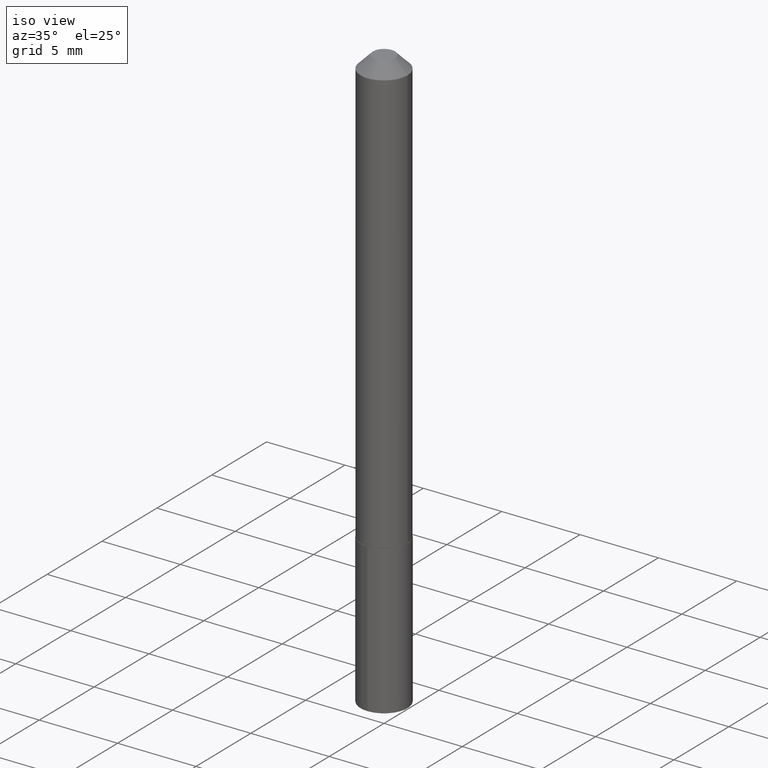
[diagram: clean part render]
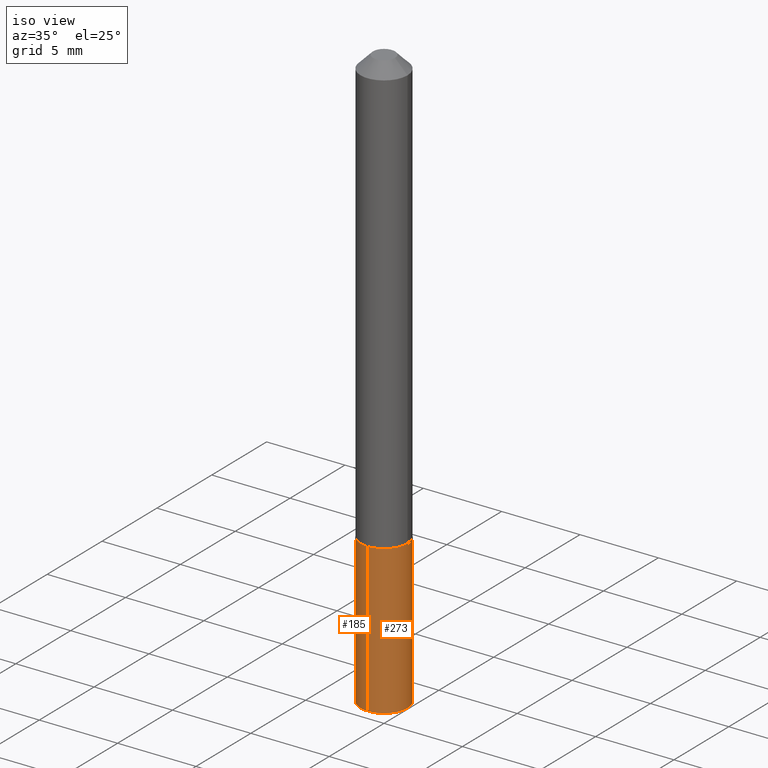
[diagram: same view with one multi-face feature highlighted, each face labeled with its STEP entity id]
A machine part, iso view. The highlighted faces form ONE feature: a constant-radius fillet chain: 2 tangent blend faces with common blend radius 1.4999 mm. The faces share edges in the B-rep.
Their STEP definitions:
[1] entity #273 (Cylinder):
#4 = FACE_OUTER_BOUND ( 'NONE', #236, .T. ) ;
#15 = EDGE_CURVE ( 'NONE', #282, #309, #233, .T. ) ;
#22 = CARTESIAN_POINT ( 'NONE',  ( 4.195754854663658212E-16, 0.05904999999999617499, -1.094500000000000250 ) ) ;
#36 = DIRECTION ( 'NONE',  ( -2.445087300798307446E-29, 3.492027676271023430E-15, 1.000000000000000000 ) ) ;
#44 = LINE ( 'NONE', #110, #94 ) ;
#51 = VERTEX_POINT ( 'NONE', #286 ) ;
#66 = VECTOR ( 'NONE', #357, 39.37007874015748143 ) ;
#85 = VERTEX_POINT ( 'NONE', #140 ) ;
#94 = VECTOR ( 'NONE', #275, 39.37007874015748143 ) ;
#95 = EDGE_CURVE ( 'NONE', #51, #309, #237, .T. ) ;
#110 = CARTESIAN_POINT ( 'NONE',  ( -4.123439461173472114E-16, -0.05905000000000382165, -1.094499999999999584 ) ) ;
#115 = DIRECTION ( 'NONE',  ( -2.445087300798307446E-29, 3.492027676271023430E-15, 1.000000000000000000 ) ) ;
#122 = CARTESIAN_POINT ( 'NONE',  ( 2.676565608369631794E-29, -3.821426325363822773E-15, -1.094499999999999806 ) ) ;
#123 = AXIS2_PLACEMENT_3D ( 'NONE', #206, #115, #283 ) ;
#127 = CARTESIAN_POINT ( 'NONE',  ( -4.123439461173472114E-16, -0.05905000000000382165, -1.094499999999999584 ) ) ;
#140 = CARTESIAN_POINT ( 'NONE',  ( -4.123439461173381888E-16, -0.05905000000000514698, -1.468564532785947341 ) ) ;
#152 = AXIS2_PLACEMENT_3D ( 'NONE', #122, #240, #364 ) ;
#154 = DIRECTION ( 'NONE',  ( -6.982962677686265922E-15, -1.000000000000000000, 4.626330217890369336E-15 ) ) ;
#155 = EDGE_CURVE ( 'NONE', #85, #282, #44, .T. ) ;
#167 = ORIENTED_EDGE ( 'NONE', *, *, #95, .T. ) ;
#186 = CARTESIAN_POINT ( 'NONE',  ( 3.591186047163604119E-29, -5.127670026563741569E-15, -1.468564532785947563 ) ) ;
#190 = CARTESIAN_POINT ( 'NONE',  ( 4.195754854663749917E-16, 0.05904999999999616805, -1.094500000000000250 ) ) ;
#203 = EDGE_CURVE ( 'NONE', #85, #51, #349, .T. ) ;
#206 = CARTESIAN_POINT ( 'NONE',  ( 2.676565608369631794E-29, -3.821426325363822773E-15, -1.094499999999999806 ) ) ;
#217 = CYLINDRICAL_SURFACE ( 'NONE', #152, 0.05904999999999999832 ) ;
#233 = CIRCLE ( 'NONE', #123, 0.05904999999999999832 ) ;
#236 = EDGE_LOOP ( 'NONE', ( #378, #167, #345, #355 ) ) ;
#237 = LINE ( 'NONE', #22, #66 ) ;
#240 = DIRECTION ( 'NONE',  ( -2.445087300798307446E-29, 3.492027676271023430E-15, 1.000000000000000000 ) ) ;
#273 = ADVANCED_FACE ( 'NONE', ( #4 ), #217, .T. ) ;
#275 = DIRECTION ( 'NONE',  ( -2.445087300798307446E-29, 3.492027676271023430E-15, 1.000000000000000000 ) ) ;
#282 = VERTEX_POINT ( 'NONE', #127 ) ;
#283 = DIRECTION ( 'NONE',  ( -6.982962677686265922E-15, -1.000000000000000000, 4.626330217890369336E-15 ) ) ;
#286 = CARTESIAN_POINT ( 'NONE',  ( 4.195754854663751396E-16, 0.05904999999999488436, -1.468564532785947785 ) ) ;
#309 = VERTEX_POINT ( 'NONE', #190 ) ;
#341 = AXIS2_PLACEMENT_3D ( 'NONE', #186, #36, #154 ) ;
#345 = ORIENTED_EDGE ( 'NONE', *, *, #15, .F. ) ;
#349 = CIRCLE ( 'NONE', #341, 0.05904999999999999832 ) ;
#355 = ORIENTED_EDGE ( 'NONE', *, *, #155, .F. ) ;
#357 = DIRECTION ( 'NONE',  ( -2.445087300798307446E-29, 3.492027676271023430E-15, 1.000000000000000000 ) ) ;
#364 = DIRECTION ( 'NONE',  ( -6.982962677686265922E-15, -1.000000000000000000, 4.626330217890369336E-15 ) ) ;
#378 = ORIENTED_EDGE ( 'NONE', *, *, #203, .T. ) ;
[2] entity #185 (Cylinder):
#8 = EDGE_CURVE ( 'NONE', #309, #282, #293, .T. ) ;
#19 = CARTESIAN_POINT ( 'NONE',  ( 3.591186047163604119E-29, -5.127670026563741569E-15, -1.468564532785947563 ) ) ;
#22 = CARTESIAN_POINT ( 'NONE',  ( 4.195754854663658212E-16, 0.05904999999999617499, -1.094500000000000250 ) ) ;
#44 = LINE ( 'NONE', #110, #94 ) ;
#51 = VERTEX_POINT ( 'NONE', #286 ) ;
#66 = VECTOR ( 'NONE', #357, 39.37007874015748143 ) ;
#67 = CYLINDRICAL_SURFACE ( 'NONE', #226, 0.05904999999999999832 ) ;
#75 = EDGE_CURVE ( 'NONE', #51, #85, #193, .T. ) ;
#81 = EDGE_LOOP ( 'NONE', ( #107, #324, #358, #380 ) ) ;
#85 = VERTEX_POINT ( 'NONE', #140 ) ;
#94 = VECTOR ( 'NONE', #275, 39.37007874015748143 ) ;
#95 = EDGE_CURVE ( 'NONE', #51, #309, #237, .T. ) ;
#101 = DIRECTION ( 'NONE',  ( -6.982962677686265922E-15, -1.000000000000000000, 4.626330217890369336E-15 ) ) ;
#107 = ORIENTED_EDGE ( 'NONE', *, *, #95, .F. ) ;
#110 = CARTESIAN_POINT ( 'NONE',  ( -4.123439461173472114E-16, -0.05905000000000382165, -1.094499999999999584 ) ) ;
#113 = AXIS2_PLACEMENT_3D ( 'NONE', #315, #326, #166 ) ;
#127 = CARTESIAN_POINT ( 'NONE',  ( -4.123439461173472114E-16, -0.05905000000000382165, -1.094499999999999584 ) ) ;
#140 = CARTESIAN_POINT ( 'NONE',  ( -4.123439461173381888E-16, -0.05905000000000514698, -1.468564532785947341 ) ) ;
#155 = EDGE_CURVE ( 'NONE', #85, #282, #44, .T. ) ;
#166 = DIRECTION ( 'NONE',  ( -6.982962677686265922E-15, -1.000000000000000000, 4.626330217890369336E-15 ) ) ;
#185 = ADVANCED_FACE ( 'NONE', ( #303 ), #67, .T. ) ;
#187 = AXIS2_PLACEMENT_3D ( 'NONE', #19, #228, #351 ) ;
#190 = CARTESIAN_POINT ( 'NONE',  ( 4.195754854663749917E-16, 0.05904999999999616805, -1.094500000000000250 ) ) ;
#193 = CIRCLE ( 'NONE', #187, 0.05904999999999999832 ) ;
#226 = AXIS2_PLACEMENT_3D ( 'NONE', #242, #246, #101 ) ;
#228 = DIRECTION ( 'NONE',  ( -2.445087300798307446E-29, 3.492027676271023430E-15, 1.000000000000000000 ) ) ;
#237 = LINE ( 'NONE', #22, #66 ) ;
#242 = CARTESIAN_POINT ( 'NONE',  ( 2.676565608369631794E-29, -3.821426325363822773E-15, -1.094499999999999806 ) ) ;
#246 = DIRECTION ( 'NONE',  ( -2.445087300798307446E-29, 3.492027676271023430E-15, 1.000000000000000000 ) ) ;
#275 = DIRECTION ( 'NONE',  ( -2.445087300798307446E-29, 3.492027676271023430E-15, 1.000000000000000000 ) ) ;
#282 = VERTEX_POINT ( 'NONE', #127 ) ;
#286 = CARTESIAN_POINT ( 'NONE',  ( 4.195754854663751396E-16, 0.05904999999999488436, -1.468564532785947785 ) ) ;
#293 = CIRCLE ( 'NONE', #113, 0.05904999999999999832 ) ;
#303 = FACE_OUTER_BOUND ( 'NONE', #81, .T. ) ;
#309 = VERTEX_POINT ( 'NONE', #190 ) ;
#315 = CARTESIAN_POINT ( 'NONE',  ( 2.676565608369631794E-29, -3.821426325363822773E-15, -1.094499999999999806 ) ) ;
#324 = ORIENTED_EDGE ( 'NONE', *, *, #75, .T. ) ;
#326 = DIRECTION ( 'NONE',  ( -2.445087300798307446E-29, 3.492027676271023430E-15, 1.000000000000000000 ) ) ;
#351 = DIRECTION ( 'NONE',  ( -6.982962677686265922E-15, -1.000000000000000000, 4.626330217890369336E-15 ) ) ;
#357 = DIRECTION ( 'NONE',  ( -2.445087300798307446E-29, 3.492027676271023430E-15, 1.000000000000000000 ) ) ;
#358 = ORIENTED_EDGE ( 'NONE', *, *, #155, .T. ) ;
#380 = ORIENTED_EDGE ( 'NONE', *, *, #8, .F. ) ;